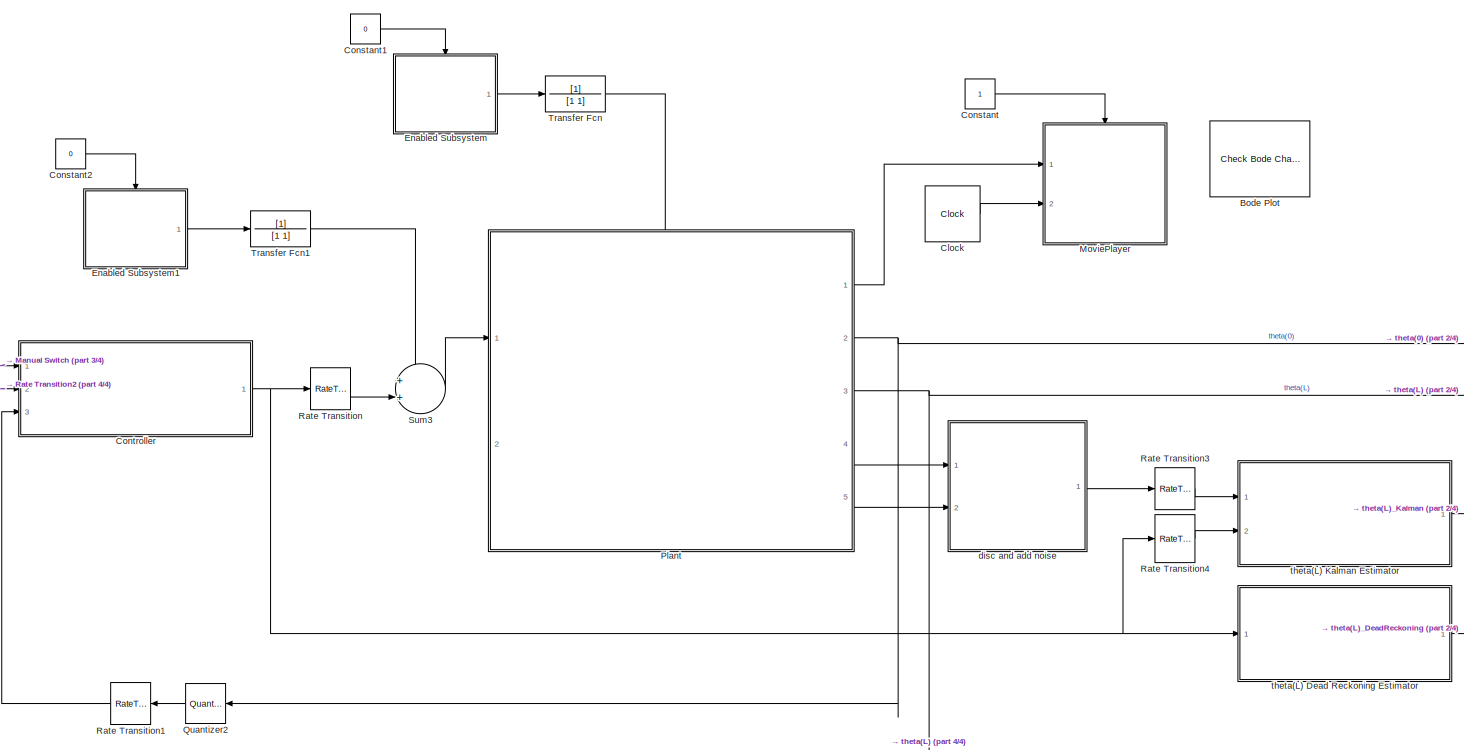
[diagram: root canvas - part 1/4, center side, full height]
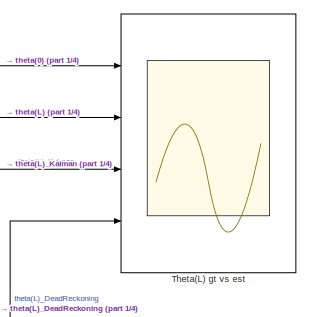
[diagram: root canvas - part 2/4, middle right region]
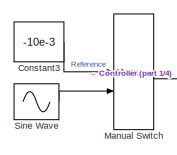
[diagram: root canvas - part 3/4, middle left region]
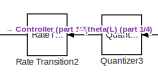
[diagram: root canvas - part 4/4, bottom left region]
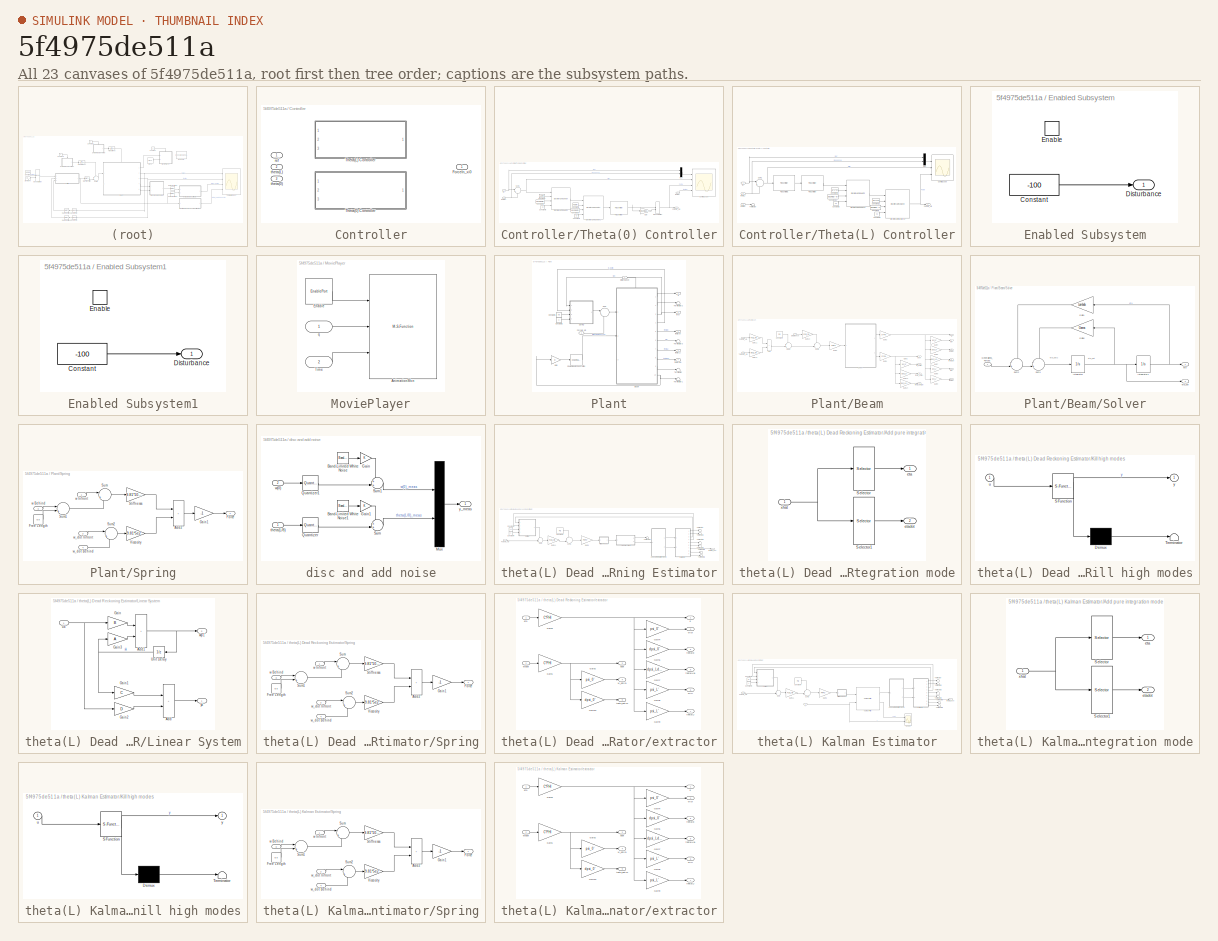
[diagram: thumbnail index - all 23 canvases of the model, root first then tree order]
MODEL slx_5f4975de511a
KIND model
CONFIG AbsTol = auto
CONFIG EnableMultiTasking = off
CONFIG FixedStep = auto
CONFIG MaxStep = auto
CONFIG MinStep = auto
CONFIG RelTol = 1e-3
CONFIG SampleTimeConstraint = Unconstrained
CONFIG SolverName = VariableStepAuto
CONFIG StartTime = 0.0
CONFIG StopTime = 100
WORKSPACE source: mxarray member
WORKSPACE C = [0.75 1 0 0 0 0 -0.125 0 1 0 0 0 ... (30 elements, 6x5)]
WORKSPACE F2Q_xi0 = [1 -1 1 -1 1 -1]
WORKSPACE F2Q_xiL = [1 1 1 1 1 1]
WORKSPACE Fg = [-671.854721711 52.3923406839 223.129733266 -31.4354044104 45.2599380026 -7.4846200977]
WORKSPACE Gama = [1.88495559215e-12 0 0 0 0 0 30.5812966001 0 0 0 0 0 ... (25 elements, 5x5)]
WORKSPACE L = 3
WORKSPACE Lambda = [0 0 0 0 0 0 93521.5701746 0 0 0 0 0 ... (25 elements, 5x5)]
WORKSPACE M2Q_xi0 = [0 0.666666666667 -2.66666666667 6 -10.6666666667 16.6666666667]
WORKSPACE PHI = [0.136866267704 0 0 0 0 0.0925693457997 0.178869515901 0.00465862081508 -0.0123020143683 -0.00075963593161 -0.110163410553 -0.0159810371615 ... (25 elements, 5x5)]
WORKSPACE dpsi_0 = [0 0.666666666667 -2.66666666667 6 -10.6666666667 16.6666666667]
WORKSPACE dpsi_L = [0 0.666666666667 2.66666666667 6 10.6666666667 16.6666666667]
WORKSPACE dpsi_Ldiv8 = [0 0.666666666667 -2 2.5 -1 -2.29166666667]
WORKSPACE eta0 = [0 0 0 0 0 0 0 0 0 0]
WORKSPACE kmr_A = [1 0 0 0 0 0 0 0 0 0 0 0.954071146375 ... (100 elements, 10x10)]
WORKSPACE kmr_B = [5e-07 0 0 0 0 0.001 0 0 0 0 0 4.91104389496e-07 ... (50 elements, 10x5)]
WORKSPACE kmr_C = [-0.034216566926 0.0912441784692 0.103305990835 -0.270336735853 0.243088881823 -0.563746912021 0.447406180495 -0.460343855936 -0.379134249314 -0.0668067502319 0 0 ... (20 elements, 2x10)]
WORKSPACE kmr_D = [0 0 0 0 0 0 0 0 0 0]
WORKSPACE kmr_N = [0 0 0 0 0 0 0 0 0 0 0 0 ... (20 elements, 10x2)]
WORKSPACE kmr_Q = [1 0 0 0 0 0 0 0 0 0 0 1 ... (100 elements, 10x10)]
WORKSPACE kmr_R = [1 0 0 1]
WORKSPACE nc = 1
WORKSPACE nk = 5
WORKSPACE nkill4kalman = 2
WORKSPACE npsi = 6
WORKSPACE psi_0 = [1 -1 1 -1 1 -1]
WORKSPACE psi_L = [1 1 1 1 1 1]
WORKSPACE ts_controller = 0.001
BLOCK [Reference] Bode Plot  REF=slctrlblks/Model Verification/Check Bode 
Characteristics
  InstantiateOnLoad = on
  Ports = []
  SourceBlock = slctrlblks/Model Verification/Check Bode \nCharacteristics
  SourceProductBaseCode = SD
  SourceType = Checks_Bode
BLOCK [Clock] Clock
BLOCK [Constant] Constant
  OpenFcn = if get_param(gcbh,'value')-48\n   set_param(gcbh,'value','0','backgroundcolor','red');\nelse\n   set_param(gcbh,'value','1','backgroundcolor','green');\nend
  SampleTime = 0
BLOCK [Constant] Constant1
  OpenFcn = if get_param(gcbh,'value')-48\n   set_param(gcbh,'value','0','backgroundcolor','red');\nelse\n   set_param(gcbh,'value','1','backgroundcolor','green');\nend
  SampleTime = 0
  Value = 0
BLOCK [Constant] Constant2
  OpenFcn = if get_param(gcbh,'value')-48\n   set_param(gcbh,'value','0','backgroundcolor','red');\nelse\n   set_param(gcbh,'value','1','backgroundcolor','green');\nend
  SampleTime = 0
  Value = 0
BLOCK [Constant] Constant3
  Value = -10e-3
BLOCK [SubSystem] Controller
  LabelModeActiveChoice = Theta(0)
  Ports = [3, 1]
  RequestExecContextInheritance = off
  Variant = on
  VariantControl = Choice
  VariantControlMode = label
BLOCK [Outport] Controller/ForceIn_xi0
BLOCK [SubSystem] Controller/Theta(0) Controller
  Ports = [3, 1]
  RequestExecContextInheritance = off
  TreatAsAtomicUnit = on
  VariantControl = Theta(0)
BLOCK [Constant] Controller/Theta(0) Controller/Constant1
  Value = db2mag(-7)
BLOCK [Constant] Controller/Theta(0) Controller/Constant4
  Value = 0.3
BLOCK [Constant] Controller/Theta(0) Controller/Constant5
  Value = 0.3
BLOCK [Constant] Controller/Theta(0) Controller/Constant6
  Value = db2mag(-6)
BLOCK [Constant] Controller/Theta(0) Controller/Constant7
  Value = 1.6*2*pi
BLOCK [Constant] Controller/Theta(0) Controller/Constant9
  Value = 48*2*pi
BLOCK [Scope] Controller/Theta(0) Controller/Control Scope
  Floating = off
  NumInputPorts = 4
  Ports = [4]
  ScopeSpecificationString = Simulink.scopes.TimeScopeBlockCfg('CurrentConfiguration', extmgr.ConfigurationSet(extmgr.Configuration('Core','General UI',true),extmgr.Configuration('Core','Source UI',true),extmgr.Configuration('Sources','WiredSimulink',true,'DataLoggingVariableName','ScopeData1'),extmgr.Configuration('Visuals','Time Domain',true,'SerializedDisplays',{struct('MinYLimReal','-0.05223','MaxYLimReal','0.03702','YLab...<+3505ch>
BLOCK [Reference] Controller/Theta(0) Controller/Discrete Varying Notch  REF=cstblocks/Linear Parameter Varying/Discrete Varying Notch
  Ports = [4, 1]
  SourceBlock = cstblocks/Linear Parameter Varying/Discrete Varying Notch
  SourceProductBaseCode = CT
  SourceType = Discrete Varying Notch
BLOCK [Reference] Controller/Theta(0) Controller/Discrete Varying Notch1  REF=cstblocks/Linear Parameter Varying/Discrete Varying Notch
  Ports = [4, 1]
  SourceBlock = cstblocks/Linear Parameter Varying/Discrete Varying Notch
  SourceProductBaseCode = CT
  SourceType = Discrete Varying Notch
BLOCK [Outport] Controller/Theta(0) Controller/ForceIn_xi0
BLOCK [Gain] Controller/Theta(0) Controller/Gain
  Gain = db2mag(-10)
BLOCK [ManualSwitch] Controller/Theta(0) Controller/Manual Switch
BLOCK [Mux] Controller/Theta(0) Controller/Mux
  DisplayOption = bar
  Inputs = 2
  Ports = [2, 1]
BLOCK [Reference] Controller/Theta(0) Controller/PID Controller  REF=pid_lib/PID Controller
  Ports = [1, 1]
  SourceBlock = pid_lib/PID Controller
  SourceProductBaseCode = SL
  SourceType = PID 1dof
BLOCK [Sum] Controller/Theta(0) Controller/Sum1
  Inputs = |+-
  Ports = [2, 1]
BLOCK [Inport] Controller/Theta(0) Controller/ref
BLOCK [Inport] Controller/Theta(0) Controller/theta(0)
  Port = 3
BLOCK [Inport] Controller/Theta(0) Controller/theta(L)
  Port = 2
BLOCK [SubSystem] Controller/Theta(L) Controller
  Ports = [3, 1]
  RequestExecContextInheritance = off
  TreatAsAtomicUnit = on
  VariantControl = Theta(L)
BLOCK [Constant] Controller/Theta(L) Controller/Constant1
  Value = db2mag(-7)
BLOCK [Constant] Controller/Theta(L) Controller/Constant10
  Value = db2mag(-6)
BLOCK [Constant] Controller/Theta(L) Controller/Constant11
  Value = 1.6*2*pi
BLOCK [Constant] Controller/Theta(L) Controller/Constant12
  Value = 48*2*pi
BLOCK [Constant] Controller/Theta(L) Controller/Constant2
  Value = 0.3
BLOCK [Constant] Controller/Theta(L) Controller/Constant3
  Value = 0.3
BLOCK [Scope] Controller/Theta(L) Controller/Control Scope
  Floating = off
  NumInputPorts = 3
  Ports = [3]
  ScopeSpecificationString = Simulink.scopes.TimeScopeBlockCfg('CurrentConfiguration', extmgr.ConfigurationSet(extmgr.Configuration('Core','General UI',true),extmgr.Configuration('Core','Source UI',true),extmgr.Configuration('Sources','WiredSimulink',true,'DataLoggingVariableName','ScopeData2'),extmgr.Configuration('Visuals','Time Domain',true,'SerializedDisplays',{struct('MinYLimReal','-0.03792','MaxYLimReal','0.04589','YLab...<+2784ch>
BLOCK [Reference] Controller/Theta(L) Controller/Discrete Varying Notch2  REF=cstblocks/Linear Parameter Varying/Discrete Varying Notch
  Ports = [4, 1]
  SourceBlock = cstblocks/Linear Parameter Varying/Discrete Varying Notch
  SourceProductBaseCode = CT
  SourceType = Discrete Varying Notch
BLOCK [Reference] Controller/Theta(L) Controller/Discrete Varying Notch3  REF=cstblocks/Linear Parameter Varying/Discrete Varying Notch
  Ports = [4, 1]
  SourceBlock = cstblocks/Linear Parameter Varying/Discrete Varying Notch
  SourceProductBaseCode = CT
  SourceType = Discrete Varying Notch
BLOCK [Outport] Controller/Theta(L) Controller/ForceIn_xi0
BLOCK [Mux] Controller/Theta(L) Controller/Mux
  DisplayOption = bar
  Inputs = 2
  Ports = [2, 1]
BLOCK [Reference] Controller/Theta(L) Controller/PID Controller  REF=pid_lib/PID Controller
  Ports = [1, 1]
  SourceBlock = pid_lib/PID Controller
  SourceProductBaseCode = SL
  SourceType = PID 1dof
BLOCK [Reference] Controller/Theta(L) Controller/PID Controller1  REF=pid_lib/PID Controller
  Ports = [1, 1]
  SourceBlock = pid_lib/PID Controller
  SourceProductBaseCode = SL
  SourceType = PID 1dof
BLOCK [Sum] Controller/Theta(L) Controller/Sum1
  Inputs = |+-
  Ports = [2, 1]
BLOCK [Terminator] Controller/Theta(L) Controller/Terminator
BLOCK [Inport] Controller/Theta(L) Controller/ref
BLOCK [Inport] Controller/Theta(L) Controller/theta(0)
  Port = 3
BLOCK [Inport] Controller/Theta(L) Controller/theta(L)
  Port = 2
BLOCK [Inport] Controller/ref
BLOCK [Inport] Controller/theta(0)
  Port = 3
BLOCK [Inport] Controller/theta(L)
  Port = 2
BLOCK [SubSystem] Enabled Subsystem
  Ports = [0, 1, 1]
  RequestExecContextInheritance = off
  TreatAsAtomicUnit = on
BLOCK [Constant] Enabled Subsystem/Constant
  Value = -100
BLOCK [Outport] Enabled Subsystem/Disturbance
  InitialOutput = 0
  OutputWhenDisabled = reset
BLOCK [EnablePort] Enabled Subsystem/Enable
  Ports = []
  StatesWhenEnabling = reset
BLOCK [SubSystem] Enabled Subsystem1
  Ports = [0, 1, 1]
  RequestExecContextInheritance = off
  TreatAsAtomicUnit = on
BLOCK [Constant] Enabled Subsystem1/Constant
  Value = -100
BLOCK [Outport] Enabled Subsystem1/Disturbance
  InitialOutput = 0
  OutputWhenDisabled = reset
BLOCK [EnablePort] Enabled Subsystem1/Enable
  Ports = []
  StatesWhenEnabling = reset
BLOCK [ManualSwitch] Manual Switch
  CurrentSetting = 0
BLOCK [SubSystem] MoviePlayer
  OpenFcn = UserData = get_param([gcb,'/AnimationSfcn'],'UserData');\nFig = UserData.Figure;\nif ishghandle(Fig,'figure');\n   %bring to the front:\n   figure(Fig);\nend
  Ports = [2, 0, 1]
  RequestExecContextInheritance = off
BLOCK [M-S-Function] MoviePlayer/AnimationSfcn
  FunctionName = Sfcn_DrawBeam
  Parameters = L
  Ports = [3]
BLOCK [EnablePort] MoviePlayer/Enable
  Ports = [0, 1]
  ShowOutputPort = on
  StatesWhenEnabling = reset
BLOCK [Inport] MoviePlayer/Time
  Port = 2
BLOCK [Inport] MoviePlayer/q
BLOCK [SubSystem] Plant
  PortSchema = {"entries":[{"content":{"sides":[{"content":{"connectorIds":["In1"]},"type":"ConnectorPlacement.EquallySpacedRectSide","uuid":"36edcb47-3a13-438a-ad6c-79b402161546"},{"content":{"connectorIds":["Out1","Out2","Out3","Out4","Out5"],"side":"RIGHT"},"type":"ConnectorPlacement.EquallySpacedRectSide","uuid":"f206446b-0714-4d39-be89-dc03dcd153f7"},{"content":{"connectorIds":["In2"],"side":"TOP"},"type":"...<+417ch>
  Ports = [2, 5]
  RequestExecContextInheritance = off
  TreatAsAtomicUnit = on
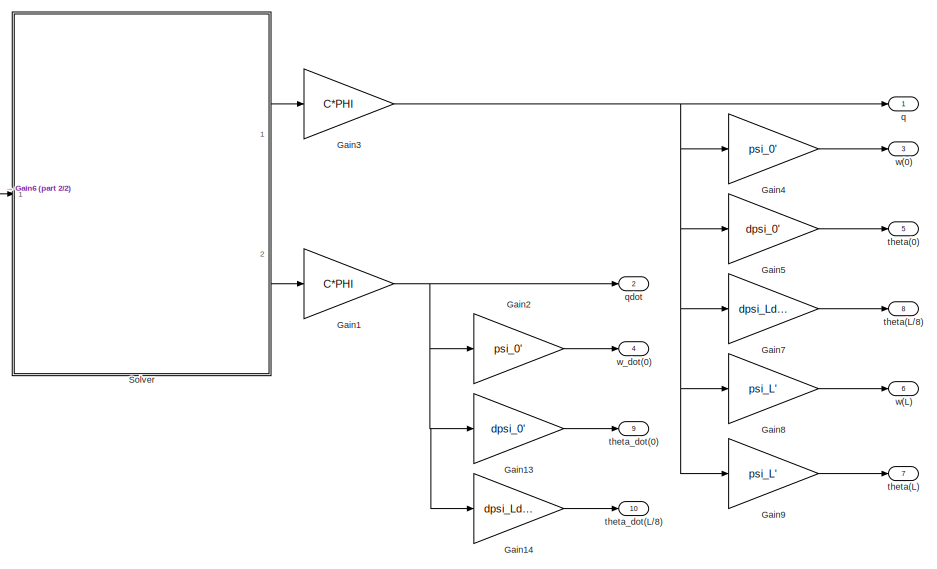
[diagram: Plant/Beam - part 1/2, right side, full height]
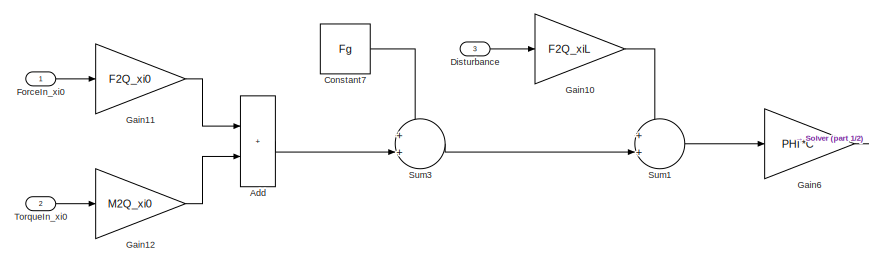
[diagram: Plant/Beam - part 2/2, middle left region]
BLOCK [SubSystem] Plant/Beam
  PortSchema = {"entries":[{"content":{"sides":[{"content":{"connectorIds":["In1","In2"]},"type":"ConnectorPlacement.EquallySpacedRectSide","uuid":"abe6467a-2196-4326-b3df-78fc9ab57750"},{"content":{"connectorIds":["Out1","Out2","Out3","Out4","Out5","Out6","Out7","Out8","Out9","Out10"],"side":"RIGHT"},"type":"ConnectorPlacement.EquallySpacedRectSide","uuid":"8f33c77a-829a-46db-9e71-a7c761c5b10e"},{"content":{"co...<+459ch>
  Ports = [3, 10]
  RequestExecContextInheritance = off
BLOCK [Sum] Plant/Beam/Add
  IconShape = rectangular
  Ports = [2, 1]
BLOCK [Constant] Plant/Beam/Constant7
  Value = Fg
BLOCK [Inport] Plant/Beam/Disturbance
  Port = 3
BLOCK [Inport] Plant/Beam/ForceIn_xi0
BLOCK [Gain] Plant/Beam/Gain1
  Gain = C*PHI
  Multiplication = Matrix(K*u) (u vector)
BLOCK [Gain] Plant/Beam/Gain10
  Gain = F2Q_xiL
  Multiplication = Matrix(K*u) (u vector)
BLOCK [Gain] Plant/Beam/Gain11
  Gain = F2Q_xi0
  Multiplication = Matrix(K*u) (u vector)
BLOCK [Gain] Plant/Beam/Gain12
  Gain = M2Q_xi0
  Multiplication = Matrix(K*u) (u vector)
BLOCK [Gain] Plant/Beam/Gain13
  Gain = dpsi_0'
  Multiplication = Matrix(K*u) (u vector)
BLOCK [Gain] Plant/Beam/Gain14
  Gain = dpsi_Ldiv8'
  Multiplication = Matrix(K*u) (u vector)
BLOCK [Gain] Plant/Beam/Gain2
  Gain = psi_0'
  Multiplication = Matrix(K*u) (u vector)
BLOCK [Gain] Plant/Beam/Gain3
  Gain = C*PHI
  Multiplication = Matrix(K*u) (u vector)
BLOCK [Gain] Plant/Beam/Gain4
  Gain = psi_0'
  Multiplication = Matrix(K*u) (u vector)
BLOCK [Gain] Plant/Beam/Gain5
  Gain = dpsi_0'
  Multiplication = Matrix(K*u) (u vector)
BLOCK [Gain] Plant/Beam/Gain6
  Gain = PHI'*C'
  Multiplication = Matrix(K*u) (u vector)
BLOCK [Gain] Plant/Beam/Gain7
  Gain = dpsi_Ldiv8'
  Multiplication = Matrix(K*u) (u vector)
BLOCK [Gain] Plant/Beam/Gain8
  Gain = psi_L'
  Multiplication = Matrix(K*u) (u vector)
BLOCK [Gain] Plant/Beam/Gain9
  Gain = psi_L'
  Multiplication = Matrix(K*u) (u vector)
BLOCK [SubSystem] Plant/Beam/Solver
  Ports = [1, 2]
  RequestExecContextInheritance = off
  TreatAsAtomicUnit = on
BLOCK [Gain] Plant/Beam/Solver/Gain1
  Gain = Lambda
  Multiplication = Matrix(K*u) (u vector)
  NameLocation = top
BLOCK [Gain] Plant/Beam/Solver/Gain6
  Gain = Gama
  Multiplication = Matrix(K*u) (u vector)
  NameLocation = top
BLOCK [Inport] Plant/Beam/Solver/Generalized_Forces
BLOCK [Integrator] Plant/Beam/Solver/Integrator
  Ports = [1, 1]
BLOCK [Integrator] Plant/Beam/Solver/Integrator1
  Ports = [1, 1]
BLOCK [Sum] Plant/Beam/Solver/Sum1
  Inputs = -+|
  NameLocation = top
  Ports = [2, 1]
BLOCK [Sum] Plant/Beam/Solver/Sum2
  Inputs = -+|
  NameLocation = top
  Ports = [2, 1]
BLOCK [Outport] Plant/Beam/Solver/eta
BLOCK [Outport] Plant/Beam/Solver/eta_dot
  Port = 2
BLOCK [Sum] Plant/Beam/Sum1
  Inputs = ++|
  NameLocation = top
  Ports = [2, 1]
BLOCK [Sum] Plant/Beam/Sum3
  Inputs = ++|
  NameLocation = top
  Ports = [2, 1]
BLOCK [Inport] Plant/Beam/TorqueIn_xi0
  Port = 2
BLOCK [Outport] Plant/Beam/q
BLOCK [Outport] Plant/Beam/qdot
  Port = 2
BLOCK [Outport] Plant/Beam/theta(0)
  Port = 5
BLOCK [Outport] Plant/Beam/theta(L)
  Port = 7
BLOCK [Outport] Plant/Beam/theta(L//8)
  Port = 8
BLOCK [Outport] Plant/Beam/theta_dot(0)
  Port = 9
BLOCK [Outport] Plant/Beam/theta_dot(L//8)
  Port = 10
BLOCK [Outport] Plant/Beam/w(0)
  Port = 3
BLOCK [Outport] Plant/Beam/w(L)
  Port = 6
BLOCK [Outport] Plant/Beam/w_dot(0)
  Port = 4
BLOCK [Constant] Plant/Constant1
  Value = 0.5
BLOCK [Constant] Plant/Constant2
  Value = 0
BLOCK [Reference] Plant/Coulomb & Viscous Friction  REF=simulink/Discontinuities/Coulomb &
Viscous Friction
  Ports = [1, 1]
  SourceBlock = simulink/Discontinuities/Coulomb &\nViscous Friction
  SourceProductBaseCode = SL
  SourceType = Coulombic and Viscous Friction
BLOCK [Inport] Plant/Disturbance
  Port = 2
BLOCK [Inport] Plant/ForceIn_xi0
BLOCK [Gain] Plant/Gain
  Gain = 0
BLOCK [SubSystem] Plant/Spring
  Ports = [4, 1]
  RequestExecContextInheritance = off
BLOCK [Sum] Plant/Spring/Add2
  IconShape = rectangular
  Ports = [2, 1]
BLOCK [Outport] Plant/Spring/Force
BLOCK [Constant] Plant/Spring/Free Length
  Value = 0.5
BLOCK [Gain] Plant/Spring/Gain1
  Gain = -1
BLOCK [Gain] Plant/Spring/Stiffnesss
  Gain = 9.81*10e3
BLOCK [Sum] Plant/Spring/Sum
  Inputs = |+-
  Ports = [2, 1]
BLOCK [Sum] Plant/Spring/Sum1
  Inputs = |+-
  Ports = [2, 1]
BLOCK [Sum] Plant/Spring/Sum2
  Inputs = |+-
  Ports = [2, 1]
BLOCK [Gain] Plant/Spring/Viscosity
  Gain = 9.81*5e2
BLOCK [Inport] Plant/Spring/w Behind
  NameLocation = left
  Port = 3
BLOCK [Inport] Plant/Spring/w Infront
BLOCK [Inport] Plant/Spring/w_dot Behind
  Port = 4
BLOCK [Inport] Plant/Spring/w_dot Infront
  Port = 2
BLOCK [Sum] Plant/Sum
  Inputs = |++
  Ports = [2, 1]
BLOCK [Terminator] Plant/Terminator
BLOCK [Terminator] Plant/Terminator1
BLOCK [Terminator] Plant/Terminator2
BLOCK [Terminator] Plant/Terminator3
  NameLocation = left
BLOCK [Outport] Plant/q
BLOCK [Outport] Plant/theta(0)
  Port = 2
BLOCK [Outport] Plant/theta(L)
  Port = 3
BLOCK [Outport] Plant/theta(L//8)
  Port = 4
BLOCK [Outport] Plant/w(0)
  Port = 5
BLOCK [Quantizer] Quantizer2
  NameLocation = top
  QuantizationInterval = 2*pi/(2^25)
BLOCK [Quantizer] Quantizer3
  NameLocation = top
  QuantizationInterval = 2*pi/(2^25)
BLOCK [RateTransition] Rate Transition
BLOCK [RateTransition] Rate Transition1
  NameLocation = top
  OutPortSampleTime = ts_controller
BLOCK [RateTransition] Rate Transition2
  NameLocation = top
  OutPortSampleTime = ts_controller
BLOCK [RateTransition] Rate Transition3
  OutPortSampleTime = ts_controller
BLOCK [RateTransition] Rate Transition4
  OutPortSampleTime = ts_controller
BLOCK [Sin] Sine Wave
  Amplitude = 10e-3
  Bias = 5e-3
  Frequency = 2*pi*2
  Ports = [0, 1]
  SampleTime = ts_controller
BLOCK [Sum] Sum3
  Inputs = ++|
  NameLocation = top
  Ports = [2, 1]
BLOCK [Scope] Theta(L) gt vs est
  Floating = off
  NumInputPorts = 4
  Ports = [4]
  ScopeSpecificationString = Simulink.scopes.TimeScopeBlockCfg('CurrentConfiguration', extmgr.ConfigurationSet(extmgr.Configuration('Core','General UI',true),extmgr.Configuration('Core','Source UI',true),extmgr.Configuration('Sources','WiredSimulink',true,'DataLoggingVariableName','ScopeData1'),extmgr.Configuration('Visuals','Time Domain',true,'SerializedDisplays',{struct('MinYLimReal','-0.18981','MaxYLimReal','0.08964','YLab...<+1590ch>
BLOCK [TransferFcn] Transfer Fcn
  Denominator = [1 1]
BLOCK [TransferFcn] Transfer Fcn1
  Denominator = [1 1]
BLOCK [SubSystem] disc and add noise
  Ports = [2, 1]
  RequestExecContextInheritance = off
BLOCK [Reference] disc and add noise/Band-Limited White Noise  REF=simulink/Sources/Band-Limited
White Noise
  Ports = [0, 1]
  SourceBlock = simulink/Sources/Band-Limited\nWhite Noise
  SourceProductBaseCode = SL
  SourceType = Band-Limited White Noise.
BLOCK [Reference] disc and add noise/Band-Limited White Noise1  REF=simulink/Sources/Band-Limited
White Noise
  Ports = [0, 1]
  SourceBlock = simulink/Sources/Band-Limited\nWhite Noise
  SourceProductBaseCode = SL
  SourceType = Band-Limited White Noise.
BLOCK [Gain] disc and add noise/Gain
BLOCK [Gain] disc and add noise/Gain1
BLOCK [Mux] disc and add noise/Mux
  DisplayOption = bar
  Inputs = 2
  Ports = [2, 1]
BLOCK [Quantizer] disc and add noise/Quantizer
  QuantizationInterval = 2*pi/(2^25)
BLOCK [Quantizer] disc and add noise/Quantizer1
  QuantizationInterval = 1/(2^25)
BLOCK [Sum] disc and add noise/Sum
  Inputs = ++|
  Ports = [2, 1]
BLOCK [Sum] disc and add noise/Sum1
  Inputs = ++|
  Ports = [2, 1]
BLOCK [Inport] disc and add noise/theta(L//8)
BLOCK [Inport] disc and add noise/w(0)
  Port = 2
BLOCK [Outport] disc and add noise/y_meas
BLOCK [SubSystem] theta(L) Dead Reckoning Estimator
  Ports = [1, 1]
  RequestExecContextInheritance = off
  TreatAsAtomicUnit = on
BLOCK [SubSystem] theta(L) Dead Reckoning Estimator/Add pure integration mode
  Ports = [1, 2]
  RequestExecContextInheritance = off
BLOCK [Selector] theta(L) Dead Reckoning Estimator/Add pure integration mode/Selector
  IndexOptions = Index vector (dialog)
  Indices = [1:nk]
  InputPortWidth = 2*nk
  OutputSizes = 1
  Ports = [1, 1]
BLOCK [Selector] theta(L) Dead Reckoning Estimator/Add pure integration mode/Selector1
  IndexOptions = Index vector (dialog)
  Indices = [nk+1:2*nk]
  InputPortWidth = 2*nk
  OutputSizes = 1
  Ports = [1, 1]
BLOCK [Outport] theta(L) Dead Reckoning Estimator/Add pure integration mode/eta
BLOCK [Outport] theta(L) Dead Reckoning Estimator/Add pure integration mode/etadot
  Port = 2
BLOCK [Inport] theta(L) Dead Reckoning Estimator/Add pure integration mode/xhat
BLOCK [Constant] theta(L) Dead Reckoning Estimator/Constant2
  Value = 0.5
BLOCK [Constant] theta(L) Dead Reckoning Estimator/Constant4
  Value = 0
BLOCK [Constant] theta(L) Dead Reckoning Estimator/Constant7
  Value = Fg
BLOCK [Inport] theta(L) Dead Reckoning Estimator/ForceIn_xi0
BLOCK [Gain] theta(L) Dead Reckoning Estimator/Gain11
  Gain = F2Q_xi0
  Multiplication = Matrix(K*u) (u vector)
BLOCK [Gain] theta(L) Dead Reckoning Estimator/Gain6
  Gain = PHI'*C'
  Multiplication = Matrix(K*u) (u vector)
BLOCK [SubSystem] theta(L) Dead Reckoning Estimator/Kill high modes
  ErrorFcn = Stateflow.Translate.translate
  PermitHierarchicalResolution = ExplicitOnly
  Ports = [1, 1]
  RequestExecContextInheritance = off
  SFBlockType = MATLAB Function
  TreatAsAtomicUnit = on
BLOCK [Demux] theta(L) Dead Reckoning Estimator/Kill high modes/ Demux 
  Outputs = 1
  Ports = [1, 1]
BLOCK [S-Function] theta(L) Dead Reckoning Estimator/Kill high modes/ SFunction 
  EnableBusSupport = on
  FunctionName = sf_sfun
  Parameters = nkill4kalman
  PortCounts = [1 2]
  Ports = [1, 2]
  SFcnIsStateOwnerBlock = off
  SFunctionDeploymentMode = off
  Tag = Stateflow S-Function 1
BLOCK [Terminator] theta(L) Dead Reckoning Estimator/Kill high modes/ Terminator 
BLOCK [Inport] theta(L) Dead Reckoning Estimator/Kill high modes/u
BLOCK [Outport] theta(L) Dead Reckoning Estimator/Kill high modes/y
BLOCK [SubSystem] theta(L) Dead Reckoning Estimator/Linear System
  Ports = [1, 2]
  RequestExecContextInheritance = off
BLOCK [Sum] theta(L) Dead Reckoning Estimator/Linear System/Add
  IconShape = rectangular
  Ports = [2, 1]
BLOCK [Sum] theta(L) Dead Reckoning Estimator/Linear System/Add1
  IconShape = rectangular
  Ports = [2, 1]
BLOCK [Gain] theta(L) Dead Reckoning Estimator/Linear System/Gain
  Gain = B
  Multiplication = Matrix(K*u) (u vector)
BLOCK [Gain] theta(L) Dead Reckoning Estimator/Linear System/Gain1
  Gain = C
  Multiplication = Matrix(K*u) (u vector)
BLOCK [Gain] theta(L) Dead Reckoning Estimator/Linear System/Gain2
  Gain = D
  Multiplication = Matrix(K*u) (u vector)
BLOCK [Gain] theta(L) Dead Reckoning Estimator/Linear System/Gain3
  Gain = A
  Multiplication = Matrix(K*u) (u vector)
BLOCK [UnitDelay] theta(L) Dead Reckoning Estimator/Linear System/Unit Delay
  HasFrameUpgradeWarning = on
  NameLocation = top
  SampleTime = -1
BLOCK [Inport] theta(L) Dead Reckoning Estimator/Linear System/uk
BLOCK [Outport] theta(L) Dead Reckoning Estimator/Linear System/xkp1
  Port = 2
BLOCK [Outport] theta(L) Dead Reckoning Estimator/Linear System/yk
BLOCK [SubSystem] theta(L) Dead Reckoning Estimator/Spring
  Ports = [4, 1]
  RequestExecContextInheritance = off
BLOCK [Sum] theta(L) Dead Reckoning Estimator/Spring/Add2
  IconShape = rectangular
  Ports = [2, 1]
BLOCK [Outport] theta(L) Dead Reckoning Estimator/Spring/Force
BLOCK [Constant] theta(L) Dead Reckoning Estimator/Spring/Free Length
  Value = 0.5
BLOCK [Gain] theta(L) Dead Reckoning Estimator/Spring/Gain1
  Gain = -1
BLOCK [Gain] theta(L) Dead Reckoning Estimator/Spring/Stiffnesss
  Gain = 9.81*10e3
BLOCK [Sum] theta(L) Dead Reckoning Estimator/Spring/Sum
  Inputs = |+-
  Ports = [2, 1]
BLOCK [Sum] theta(L) Dead Reckoning Estimator/Spring/Sum1
  Inputs = |+-
  Ports = [2, 1]
BLOCK [Sum] theta(L) Dead Reckoning Estimator/Spring/Sum2
  Inputs = |+-
  Ports = [2, 1]
BLOCK [Gain] theta(L) Dead Reckoning Estimator/Spring/Viscosity
  Gain = 9.81*5e2
BLOCK [Inport] theta(L) Dead Reckoning Estimator/Spring/w Behind
  NameLocation = left
  Port = 3
BLOCK [Inport] theta(L) Dead Reckoning Estimator/Spring/w Infront
BLOCK [Inport] theta(L) Dead Reckoning Estimator/Spring/w_dot Behind
  Port = 4
BLOCK [Inport] theta(L) Dead Reckoning Estimator/Spring/w_dot Infront
  Port = 2
BLOCK [Sum] theta(L) Dead Reckoning Estimator/Sum
  Inputs = ++|
  Ports = [2, 1]
BLOCK [Sum] theta(L) Dead Reckoning Estimator/Sum3
  Inputs = ++|
  NameLocation = top
  Ports = [2, 1]
BLOCK [Terminator] theta(L) Dead Reckoning Estimator/Terminator
BLOCK [Terminator] theta(L) Dead Reckoning Estimator/Terminator1
BLOCK [Terminator] theta(L) Dead Reckoning Estimator/Terminator2
BLOCK [Terminator] theta(L) Dead Reckoning Estimator/Terminator3
BLOCK [Terminator] theta(L) Dead Reckoning Estimator/Terminator4
BLOCK [Terminator] theta(L) Dead Reckoning Estimator/Terminator5
BLOCK [Terminator] theta(L) Dead Reckoning Estimator/Terminator6
BLOCK [SubSystem] theta(L) Dead Reckoning Estimator/extractor
  Ports = [2, 9]
  RequestExecContextInheritance = off
BLOCK [Gain] theta(L) Dead Reckoning Estimator/extractor/Gain1
  Gain = C*PHI
  Multiplication = Matrix(K*u) (u vector)
BLOCK [Gain] theta(L) Dead Reckoning Estimator/extractor/Gain13
  Gain = dpsi_0'
  Multiplication = Matrix(K*u) (u vector)
BLOCK [Gain] theta(L) Dead Reckoning Estimator/extractor/Gain2
  Gain = psi_0'
  Multiplication = Matrix(K*u) (u vector)
BLOCK [Gain] theta(L) Dead Reckoning Estimator/extractor/Gain3
  Gain = C*PHI
  Multiplication = Matrix(K*u) (u vector)
BLOCK [Gain] theta(L) Dead Reckoning Estimator/extractor/Gain4
  Gain = psi_0'
  Multiplication = Matrix(K*u) (u vector)
BLOCK [Gain] theta(L) Dead Reckoning Estimator/extractor/Gain5
  Gain = dpsi_0'
  Multiplication = Matrix(K*u) (u vector)
BLOCK [Gain] theta(L) Dead Reckoning Estimator/extractor/Gain7
  Gain = dpsi_Ldiv8'
  Multiplication = Matrix(K*u) (u vector)
BLOCK [Gain] theta(L) Dead Reckoning Estimator/extractor/Gain8
  Gain = psi_L'
  Multiplication = Matrix(K*u) (u vector)
BLOCK [Gain] theta(L) Dead Reckoning Estimator/extractor/Gain9
  Gain = psi_L'
  Multiplication = Matrix(K*u) (u vector)
BLOCK [Inport] theta(L) Dead Reckoning Estimator/extractor/eta
BLOCK [Inport] theta(L) Dead Reckoning Estimator/extractor/etadot
  Port = 2
BLOCK [Outport] theta(L) Dead Reckoning Estimator/extractor/q
BLOCK [Outport] theta(L) Dead Reckoning Estimator/extractor/qdot
  Port = 2
BLOCK [Outport] theta(L) Dead Reckoning Estimator/extractor/theta(0)
  Port = 5
BLOCK [Outport] theta(L) Dead Reckoning Estimator/extractor/theta(L)
  Port = 7
BLOCK [Outport] theta(L) Dead Reckoning Estimator/extractor/theta(L//8)
  Port = 8
BLOCK [Outport] theta(L) Dead Reckoning Estimator/extractor/theta_dot(0)
  Port = 9
BLOCK [Outport] theta(L) Dead Reckoning Estimator/extractor/w(0)
  Port = 3
BLOCK [Outport] theta(L) Dead Reckoning Estimator/extractor/w(L)
  Port = 6
BLOCK [Outport] theta(L) Dead Reckoning Estimator/extractor/w_dot(0)
  Port = 4
BLOCK [Outport] theta(L) Dead Reckoning Estimator/theta(L)_est
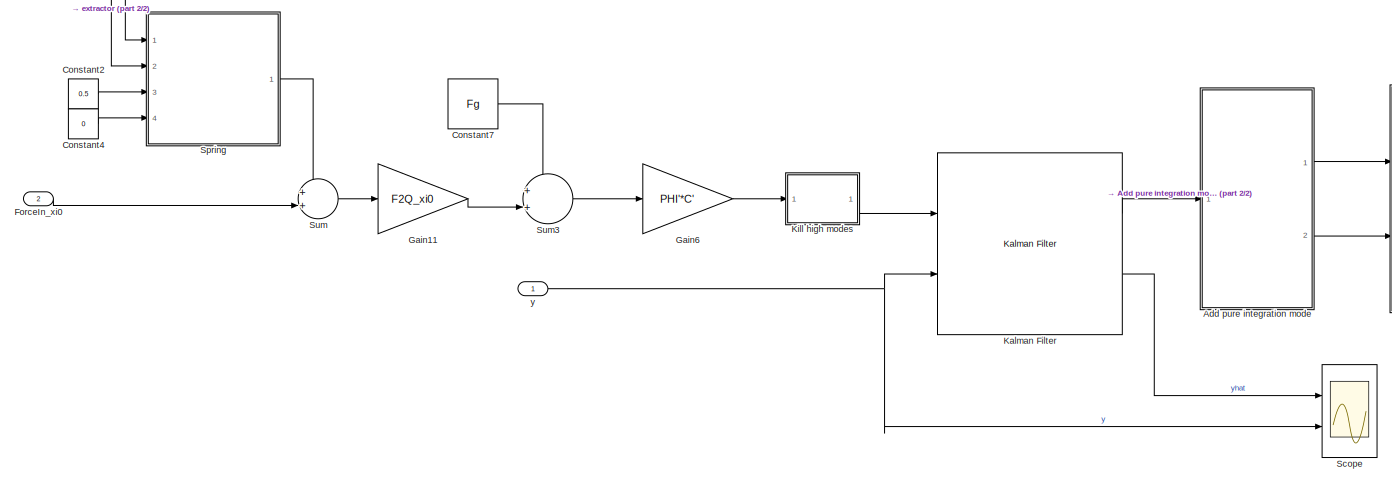
[diagram: theta(L) Kalman Estimator - part 1/2, most of the canvas]
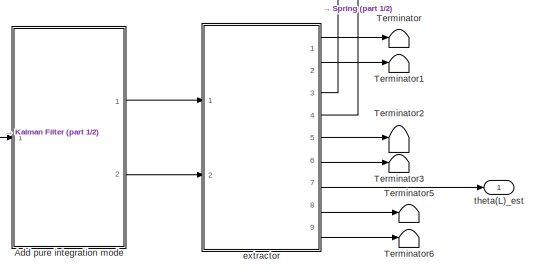
[diagram: theta(L) Kalman Estimator - part 2/2, middle right region]
BLOCK [SubSystem] theta(L) Kalman Estimator
  Ports = [2, 1]
  RequestExecContextInheritance = off
  TreatAsAtomicUnit = on
BLOCK [SubSystem] theta(L) Kalman Estimator/Add pure integration mode
  Ports = [1, 2]
  RequestExecContextInheritance = off
BLOCK [Selector] theta(L) Kalman Estimator/Add pure integration mode/Selector
  IndexOptions = Index vector (dialog)
  Indices = [1:nk]
  InputPortWidth = 2*nk
  OutputSizes = 1
  Ports = [1, 1]
BLOCK [Selector] theta(L) Kalman Estimator/Add pure integration mode/Selector1
  IndexOptions = Index vector (dialog)
  Indices = [nk+1:2*nk]
  InputPortWidth = 2*nk
  OutputSizes = 1
  Ports = [1, 1]
BLOCK [Outport] theta(L) Kalman Estimator/Add pure integration mode/eta
BLOCK [Outport] theta(L) Kalman Estimator/Add pure integration mode/etadot
  Port = 2
BLOCK [Inport] theta(L) Kalman Estimator/Add pure integration mode/xhat
BLOCK [Constant] theta(L) Kalman Estimator/Constant2
  Value = 0.5
BLOCK [Constant] theta(L) Kalman Estimator/Constant4
  Value = 0
BLOCK [Constant] theta(L) Kalman Estimator/Constant7
  Value = Fg
BLOCK [Inport] theta(L) Kalman Estimator/ForceIn_xi0
  Port = 2
BLOCK [Gain] theta(L) Kalman Estimator/Gain11
  Gain = F2Q_xi0
  Multiplication = Matrix(K*u) (u vector)
BLOCK [Gain] theta(L) Kalman Estimator/Gain6
  Gain = PHI'*C'
  Multiplication = Matrix(K*u) (u vector)
BLOCK [Reference] theta(L) Kalman Estimator/Kalman Filter  REF=ctrlSharedLib/Kalman Filter
  Ports = [2, 2]
  SourceBlock = ctrlSharedLib/Kalman Filter
  SourceProductBaseCode = CT,ID
  SourceType = ctrlKalmanFilter
BLOCK [SubSystem] theta(L) Kalman Estimator/Kill high modes
  ErrorFcn = Stateflow.Translate.translate
  PermitHierarchicalResolution = ExplicitOnly
  Ports = [1, 1]
  RequestExecContextInheritance = off
  SFBlockType = MATLAB Function
  TreatAsAtomicUnit = on
BLOCK [Demux] theta(L) Kalman Estimator/Kill high modes/ Demux 
  Outputs = 1
  Ports = [1, 1]
BLOCK [S-Function] theta(L) Kalman Estimator/Kill high modes/ SFunction 
  EnableBusSupport = on
  FunctionName = sf_sfun
  Parameters = nkill4kalman
  PortCounts = [1 2]
  Ports = [1, 2]
  SFcnIsStateOwnerBlock = off
  SFunctionDeploymentMode = off
  Tag = Stateflow S-Function 2
BLOCK [Terminator] theta(L) Kalman Estimator/Kill high modes/ Terminator 
BLOCK [Inport] theta(L) Kalman Estimator/Kill high modes/u
BLOCK [Outport] theta(L) Kalman Estimator/Kill high modes/y
BLOCK [Scope] theta(L) Kalman Estimator/Scope
  Floating = off
  NumInputPorts = 2
  Ports = [2]
  ScopeSpecificationString = Simulink.scopes.TimeScopeBlockCfg('CurrentConfiguration', extmgr.ConfigurationSet(extmgr.Configuration('Core','General UI',true),extmgr.Configuration('Core','Source UI',true),extmgr.Configuration('Sources','WiredSimulink',true,'DataLoggingVariableName','ScopeData1'),extmgr.Configuration('Visuals','Time Domain',true,'SerializedDisplays',{struct('MinYLimReal','-0.01347','MaxYLimReal','0.02072','YLab...<+1551ch>
BLOCK [SubSystem] theta(L) Kalman Estimator/Spring
  Ports = [4, 1]
  RequestExecContextInheritance = off
BLOCK [Sum] theta(L) Kalman Estimator/Spring/Add2
  IconShape = rectangular
  Ports = [2, 1]
BLOCK [Outport] theta(L) Kalman Estimator/Spring/Force
BLOCK [Constant] theta(L) Kalman Estimator/Spring/Free Length
  Value = 0.5
BLOCK [Gain] theta(L) Kalman Estimator/Spring/Gain1
  Gain = -1
BLOCK [Gain] theta(L) Kalman Estimator/Spring/Stiffnesss
  Gain = 9.81*10e3
BLOCK [Sum] theta(L) Kalman Estimator/Spring/Sum
  Inputs = |+-
  Ports = [2, 1]
BLOCK [Sum] theta(L) Kalman Estimator/Spring/Sum1
  Inputs = |+-
  Ports = [2, 1]
BLOCK [Sum] theta(L) Kalman Estimator/Spring/Sum2
  Inputs = |+-
  Ports = [2, 1]
BLOCK [Gain] theta(L) Kalman Estimator/Spring/Viscosity
  Gain = 9.81*5e2
BLOCK [Inport] theta(L) Kalman Estimator/Spring/w Behind
  NameLocation = left
  Port = 3
BLOCK [Inport] theta(L) Kalman Estimator/Spring/w Infront
BLOCK [Inport] theta(L) Kalman Estimator/Spring/w_dot Behind
  Port = 4
BLOCK [Inport] theta(L) Kalman Estimator/Spring/w_dot Infront
  Port = 2
BLOCK [Sum] theta(L) Kalman Estimator/Sum
  Inputs = ++|
  Ports = [2, 1]
BLOCK [Sum] theta(L) Kalman Estimator/Sum3
  Inputs = ++|
  NameLocation = top
  Ports = [2, 1]
BLOCK [Terminator] theta(L) Kalman Estimator/Terminator
BLOCK [Terminator] theta(L) Kalman Estimator/Terminator1
BLOCK [Terminator] theta(L) Kalman Estimator/Terminator2
BLOCK [Terminator] theta(L) Kalman Estimator/Terminator3
BLOCK [Terminator] theta(L) Kalman Estimator/Terminator5
BLOCK [Terminator] theta(L) Kalman Estimator/Terminator6
BLOCK [SubSystem] theta(L) Kalman Estimator/extractor
  Ports = [2, 9]
  RequestExecContextInheritance = off
BLOCK [Gain] theta(L) Kalman Estimator/extractor/Gain1
  Gain = C*PHI
  Multiplication = Matrix(K*u) (u vector)
BLOCK [Gain] theta(L) Kalman Estimator/extractor/Gain13
  Gain = dpsi_0'
  Multiplication = Matrix(K*u) (u vector)
BLOCK [Gain] theta(L) Kalman Estimator/extractor/Gain2
  Gain = psi_0'
  Multiplication = Matrix(K*u) (u vector)
BLOCK [Gain] theta(L) Kalman Estimator/extractor/Gain3
  Gain = C*PHI
  Multiplication = Matrix(K*u) (u vector)
BLOCK [Gain] theta(L) Kalman Estimator/extractor/Gain4
  Gain = psi_0'
  Multiplication = Matrix(K*u) (u vector)
BLOCK [Gain] theta(L) Kalman Estimator/extractor/Gain5
  Gain = dpsi_0'
  Multiplication = Matrix(K*u) (u vector)
BLOCK [Gain] theta(L) Kalman Estimator/extractor/Gain7
  Gain = dpsi_Ldiv8'
  Multiplication = Matrix(K*u) (u vector)
BLOCK [Gain] theta(L) Kalman Estimator/extractor/Gain8
  Gain = psi_L'
  Multiplication = Matrix(K*u) (u vector)
BLOCK [Gain] theta(L) Kalman Estimator/extractor/Gain9
  Gain = psi_L'
  Multiplication = Matrix(K*u) (u vector)
BLOCK [Inport] theta(L) Kalman Estimator/extractor/eta
BLOCK [Inport] theta(L) Kalman Estimator/extractor/etadot
  Port = 2
BLOCK [Outport] theta(L) Kalman Estimator/extractor/q
BLOCK [Outport] theta(L) Kalman Estimator/extractor/qdot
  Port = 2
BLOCK [Outport] theta(L) Kalman Estimator/extractor/theta(0)
  Port = 5
BLOCK [Outport] theta(L) Kalman Estimator/extractor/theta(L)
  Port = 7
BLOCK [Outport] theta(L) Kalman Estimator/extractor/theta(L//8)
  Port = 8
BLOCK [Outport] theta(L) Kalman Estimator/extractor/theta_dot(0)
  Port = 9
BLOCK [Outport] theta(L) Kalman Estimator/extractor/w(0)
  Port = 3
BLOCK [Outport] theta(L) Kalman Estimator/extractor/w(L)
  Port = 6
BLOCK [Outport] theta(L) Kalman Estimator/extractor/w_dot(0)
  Port = 4
BLOCK [Outport] theta(L) Kalman Estimator/theta(L)_est
BLOCK [Inport] theta(L) Kalman Estimator/y
ANNOTATION Plant/Beam/Solver: eta_dot
ANNOTATION Plant/Beam/Solver: eta_dot2
LINE Clock:1 -> MoviePlayer:2
LINE Constant1:1 -> Enabled Subsystem:enable
LINE Constant2:1 -> Enabled Subsystem1:enable
LINE Constant3:1 -> Manual Switch:1
LINE Constant:1 -> MoviePlayer:enable
LINE Controller/Theta(0) Controller/Constant1:1 -> Controller/Theta(0) Controller/Discrete Varying Notch1:3
LINE Controller/Theta(0) Controller/Constant4:1 -> Controller/Theta(0) Controller/Discrete Varying Notch1:4
LINE Controller/Theta(0) Controller/Constant5:1 -> Controller/Theta(0) Controller/Discrete Varying Notch:4
LINE Controller/Theta(0) Controller/Constant6:1 -> Controller/Theta(0) Controller/Discrete Varying Notch:3
LINE Controller/Theta(0) Controller/Constant7:1 -> Controller/Theta(0) Controller/Discrete Varying Notch:2
LINE Controller/Theta(0) Controller/Constant9:1 -> Controller/Theta(0) Controller/Discrete Varying Notch1:2
LINE Controller/Theta(0) Controller/Discrete Varying Notch1:1 -> Controller/Theta(0) Controller/PID Controller:1
LINE Controller/Theta(0) Controller/Discrete Varying Notch:1 -> Controller/Theta(0) Controller/Discrete Varying Notch1:1
LINE Controller/Theta(0) Controller/Gain:1 -> Controller/Theta(0) Controller/Manual Switch:2
NET Controller/Theta(0) Controller/Manual Switch:1 -> Controller/Theta(0) Controller/Control Scope:3, Controller/Theta(0) Controller/ForceIn_xi0:1
LINE Controller/Theta(0) Controller/Mux:1 -> Controller/Theta(0) Controller/Control Scope:1
NET Controller/Theta(0) Controller/PID Controller:1 -> Controller/Theta(0) Controller/Gain:1, Controller/Theta(0) Controller/Manual Switch:1
NET Controller/Theta(0) Controller/Sum1:1 -> Controller/Theta(0) Controller/Control Scope:2, Controller/Theta(0) Controller/Discrete Varying Notch:1
NET Controller/Theta(0) Controller/ref:1 -> Controller/Theta(0) Controller/Mux:1, Controller/Theta(0) Controller/Sum1:1
NET Controller/Theta(0) Controller/theta(0):1 -> Controller/Theta(0) Controller/Mux:2, Controller/Theta(0) Controller/Sum1:2
LINE Controller/Theta(0) Controller/theta(L):1 -> Controller/Theta(0) Controller/Control Scope:4
LINE Controller/Theta(L) Controller/Constant10:1 -> Controller/Theta(L) Controller/Discrete Varying Notch2:3
LINE Controller/Theta(L) Controller/Constant11:1 -> Controller/Theta(L) Controller/Discrete Varying Notch2:2
LINE Controller/Theta(L) Controller/Constant12:1 -> Controller/Theta(L) Controller/Discrete Varying Notch3:2
LINE Controller/Theta(L) Controller/Constant1:1 -> Controller/Theta(L) Controller/Discrete Varying Notch3:3
LINE Controller/Theta(L) Controller/Constant2:1 -> Controller/Theta(L) Controller/Discrete Varying Notch3:4
LINE Controller/Theta(L) Controller/Constant3:1 -> Controller/Theta(L) Controller/Discrete Varying Notch2:4
LINE Controller/Theta(L) Controller/Discrete Varying Notch2:1 -> Controller/Theta(L) Controller/Discrete Varying Notch3:1
NET Controller/Theta(L) Controller/Discrete Varying Notch3:1 -> Controller/Theta(L) Controller/Control Scope:3, Controller/Theta(L) Controller/ForceIn_xi0:1
LINE Controller/Theta(L) Controller/Mux:1 -> Controller/Theta(L) Controller/Control Scope:1
LINE Controller/Theta(L) Controller/PID Controller1:1 -> Controller/Theta(L) Controller/PID Controller:1
LINE Controller/Theta(L) Controller/PID Controller:1 -> Controller/Theta(L) Controller/Discrete Varying Notch2:1
NET Controller/Theta(L) Controller/Sum1:1 -> Controller/Theta(L) Controller/Control Scope:2, Controller/Theta(L) Controller/PID Controller1:1
NET Controller/Theta(L) Controller/ref:1 -> Controller/Theta(L) Controller/Mux:1, Controller/Theta(L) Controller/Sum1:1
LINE Controller/Theta(L) Controller/theta(0):1 -> Controller/Theta(L) Controller/Terminator:1
NET Controller/Theta(L) Controller/theta(L):1 -> Controller/Theta(L) Controller/Mux:2, Controller/Theta(L) Controller/Sum1:2
NET Controller:1 -> Rate Transition4:1, Rate Transition:1, theta(L) Dead Reckoning Estimator:1
LINE Enabled Subsystem/Constant:1 -> Enabled Subsystem/Disturbance:1
LINE Enabled Subsystem1/Constant:1 -> Enabled Subsystem1/Disturbance:1
LINE Enabled Subsystem1:1 -> Transfer Fcn1:1
LINE Enabled Subsystem:1 -> Transfer Fcn:1
LINE Manual Switch:1 -> Controller:1
LINE MoviePlayer/Enable:1 -> MoviePlayer/AnimationSfcn:1
LINE MoviePlayer/Time:1 -> MoviePlayer/AnimationSfcn:3
LINE MoviePlayer/q:1 -> MoviePlayer/AnimationSfcn:2
LINE Plant/Beam/Add:1 -> Plant/Beam/Sum3:2
LINE Plant/Beam/Constant7:1 -> Plant/Beam/Sum3:1
LINE Plant/Beam/Disturbance:1 -> Plant/Beam/Gain10:1
LINE Plant/Beam/ForceIn_xi0:1 -> Plant/Beam/Gain11:1
LINE Plant/Beam/Gain10:1 -> Plant/Beam/Sum1:1
LINE Plant/Beam/Gain11:1 -> Plant/Beam/Add:1
LINE Plant/Beam/Gain12:1 -> Plant/Beam/Add:2
LINE Plant/Beam/Gain13:1 -> Plant/Beam/theta_dot(0):1
LINE Plant/Beam/Gain14:1 -> Plant/Beam/theta_dot(L//8):1
NET Plant/Beam/Gain1:1 -> Plant/Beam/Gain13:1, Plant/Beam/Gain14:1, Plant/Beam/Gain2:1, Plant/Beam/qdot:1
LINE Plant/Beam/Gain2:1 -> Plant/Beam/w_dot(0):1
NET Plant/Beam/Gain3:1 -> Plant/Beam/Gain4:1, Plant/Beam/Gain5:1, Plant/Beam/Gain7:1, Plant/Beam/Gain8:1, Plant/Beam/Gain9:1, Plant/Beam/q:1
LINE Plant/Beam/Gain4:1 -> Plant/Beam/w(0):1
LINE Plant/Beam/Gain5:1 -> Plant/Beam/theta(0):1
LINE Plant/Beam/Gain6:1 -> Plant/Beam/Solver:1
LINE Plant/Beam/Gain7:1 -> Plant/Beam/theta(L//8):1
LINE Plant/Beam/Gain8:1 -> Plant/Beam/w(L):1
LINE Plant/Beam/Gain9:1 -> Plant/Beam/theta(L):1
LINE Plant/Beam/Solver/Gain1:1 -> Plant/Beam/Solver/Sum2:1
LINE Plant/Beam/Solver/Gain6:1 -> Plant/Beam/Solver/Sum1:1
LINE Plant/Beam/Solver/Generalized_Forces:1 -> Plant/Beam/Solver/Sum2:2
NET Plant/Beam/Solver/Integrator1:1 -> Plant/Beam/Solver/Gain1:1, Plant/Beam/Solver/eta:1
NET Plant/Beam/Solver/Integrator:1 -> Plant/Beam/Solver/Gain6:1, Plant/Beam/Solver/Integrator1:1, Plant/Beam/Solver/eta_dot:1
LINE Plant/Beam/Solver/Sum1:1 -> Plant/Beam/Solver/Integrator:1
LINE Plant/Beam/Solver/Sum2:1 -> Plant/Beam/Solver/Sum1:2
LINE Plant/Beam/Solver:1 -> Plant/Beam/Gain3:1
LINE Plant/Beam/Solver:2 -> Plant/Beam/Gain1:1
LINE Plant/Beam/Sum1:1 -> Plant/Beam/Gain6:1
LINE Plant/Beam/Sum3:1 -> Plant/Beam/Sum1:2
LINE Plant/Beam/TorqueIn_xi0:1 -> Plant/Beam/Gain12:1
LINE Plant/Beam:1 -> Plant/q:1
NET Plant/Beam:10 -> Plant/Gain:1, Plant/Terminator1:1
LINE Plant/Beam:2 -> Plant/Terminator2:1
NET Plant/Beam:3 -> Plant/Spring:1, Plant/w(0):1
LINE Plant/Beam:4 -> Plant/Spring:2
LINE Plant/Beam:5 -> Plant/theta(0):1
LINE Plant/Beam:6 -> Plant/Terminator3:1
LINE Plant/Beam:7 -> Plant/theta(L):1
LINE Plant/Beam:8 -> Plant/theta(L//8):1
LINE Plant/Beam:9 -> Plant/Terminator:1
LINE Plant/Constant1:1 -> Plant/Spring:3
LINE Plant/Constant2:1 -> Plant/Spring:4
LINE Plant/Coulomb & Viscous Friction:1 -> Plant/Beam:2
LINE Plant/Disturbance:1 -> Plant/Beam:3
LINE Plant/ForceIn_xi0:1 -> Plant/Sum:2
LINE Plant/Gain:1 -> Plant/Coulomb & Viscous Friction:1
LINE Plant/Spring/Add2:1 -> Plant/Spring/Gain1:1
LINE Plant/Spring/Free Length:1 -> Plant/Spring/Sum1:2
LINE Plant/Spring/Gain1:1 -> Plant/Spring/Force:1
LINE Plant/Spring/Stiffnesss:1 -> Plant/Spring/Add2:1
LINE Plant/Spring/Sum1:1 -> Plant/Spring/Sum:2
LINE Plant/Spring/Sum2:1 -> Plant/Spring/Viscosity:1
LINE Plant/Spring/Sum:1 -> Plant/Spring/Stiffnesss:1
LINE Plant/Spring/Viscosity:1 -> Plant/Spring/Add2:2
LINE Plant/Spring/w Behind:1 -> Plant/Spring/Sum1:1
LINE Plant/Spring/w Infront:1 -> Plant/Spring/Sum:1
LINE Plant/Spring/w_dot Behind:1 -> Plant/Spring/Sum2:2
LINE Plant/Spring/w_dot Infront:1 -> Plant/Spring/Sum2:1
LINE Plant/Spring:1 -> Plant/Sum:1
LINE Plant/Sum:1 -> Plant/Beam:1
LINE Plant:1 -> MoviePlayer:1
NET Plant:2 -> Quantizer2:1, Theta(L) gt vs est:1
NET Plant:3 -> Quantizer3:1, Theta(L) gt vs est:2
LINE Plant:4 -> disc and add noise:1
LINE Plant:5 -> disc and add noise:2
LINE Quantizer2:1 -> Rate Transition1:1
LINE Quantizer3:1 -> Rate Transition2:1
LINE Rate Transition1:1 -> Controller:3
LINE Rate Transition2:1 -> Controller:2
LINE Rate Transition3:1 -> theta(L) Kalman Estimator:1
LINE Rate Transition4:1 -> theta(L) Kalman Estimator:2
LINE Rate Transition:1 -> Sum3:2
LINE Sine Wave:1 -> Manual Switch:2
LINE Sum3:1 -> Plant:1
LINE Transfer Fcn1:1 -> Sum3:1
LINE Transfer Fcn:1 -> Plant:2
LINE disc and add noise/Band-Limited White Noise1:1 -> disc and add noise/Gain1:1
LINE disc and add noise/Band-Limited White Noise:1 -> disc and add noise/Gain:1
LINE disc and add noise/Gain1:1 -> disc and add noise/Sum:1
LINE disc and add noise/Gain:1 -> disc and add noise/Sum1:1
LINE disc and add noise/Mux:1 -> disc and add noise/y_meas:1
LINE disc and add noise/Quantizer1:1 -> disc and add noise/Sum1:2
LINE disc and add noise/Quantizer:1 -> disc and add noise/Sum:2
LINE disc and add noise/Sum1:1 -> disc and add noise/Mux:1
LINE disc and add noise/Sum:1 -> disc and add noise/Mux:2
LINE disc and add noise/theta(L//8):1 -> disc and add noise/Quantizer:1
LINE disc and add noise/w(0):1 -> disc and add noise/Quantizer1:1
LINE disc and add noise:1 -> Rate Transition3:1
LINE theta(L) Dead Reckoning Estimator/Add pure integration mode/Selector1:1 -> theta(L) Dead Reckoning Estimator/Add pure integration mode/etadot:1
LINE theta(L) Dead Reckoning Estimator/Add pure integration mode/Selector:1 -> theta(L) Dead Reckoning Estimator/Add pure integration mode/eta:1
NET theta(L) Dead Reckoning Estimator/Add pure integration mode/xhat:1 -> theta(L) Dead Reckoning Estimator/Add pure integration mode/Selector1:1, theta(L) Dead Reckoning Estimator/Add pure integration mode/Selector:1
LINE theta(L) Dead Reckoning Estimator/Add pure integration mode:1 -> theta(L) Dead Reckoning Estimator/extractor:1
LINE theta(L) Dead Reckoning Estimator/Add pure integration mode:2 -> theta(L) Dead Reckoning Estimator/extractor:2
LINE theta(L) Dead Reckoning Estimator/Constant2:1 -> theta(L) Dead Reckoning Estimator/Spring:3
LINE theta(L) Dead Reckoning Estimator/Constant4:1 -> theta(L) Dead Reckoning Estimator/Spring:4
LINE theta(L) Dead Reckoning Estimator/Constant7:1 -> theta(L) Dead Reckoning Estimator/Sum3:1
LINE theta(L) Dead Reckoning Estimator/ForceIn_xi0:1 -> theta(L) Dead Reckoning Estimator/Sum:2
LINE theta(L) Dead Reckoning Estimator/Gain11:1 -> theta(L) Dead Reckoning Estimator/Sum3:2
LINE theta(L) Dead Reckoning Estimator/Gain6:1 -> theta(L) Dead Reckoning Estimator/Kill high modes:1
LINE theta(L) Dead Reckoning Estimator/Kill high modes:1 -> theta(L) Dead Reckoning Estimator/Linear System:1
NET theta(L) Dead Reckoning Estimator/Linear System/Add1:1 -> theta(L) Dead Reckoning Estimator/Linear System/Unit Delay:1, theta(L) Dead Reckoning Estimator/Linear System/xkp1:1
LINE theta(L) Dead Reckoning Estimator/Linear System/Add:1 -> theta(L) Dead Reckoning Estimator/Linear System/yk:1
LINE theta(L) Dead Reckoning Estimator/Linear System/Gain1:1 -> theta(L) Dead Reckoning Estimator/Linear System/Add:1
LINE theta(L) Dead Reckoning Estimator/Linear System/Gain2:1 -> theta(L) Dead Reckoning Estimator/Linear System/Add:2
LINE theta(L) Dead Reckoning Estimator/Linear System/Gain3:1 -> theta(L) Dead Reckoning Estimator/Linear System/Add1:2
LINE theta(L) Dead Reckoning Estimator/Linear System/Gain:1 -> theta(L) Dead Reckoning Estimator/Linear System/Add1:1
NET theta(L) Dead Reckoning Estimator/Linear System/Unit Delay:1 -> theta(L) Dead Reckoning Estimator/Linear System/Gain1:1, theta(L) Dead Reckoning Estimator/Linear System/Gain3:1
NET theta(L) Dead Reckoning Estimator/Linear System/uk:1 -> theta(L) Dead Reckoning Estimator/Linear System/Gain2:1, theta(L) Dead Reckoning Estimator/Linear System/Gain:1
LINE theta(L) Dead Reckoning Estimator/Linear System:1 -> theta(L) Dead Reckoning Estimator/Terminator4:1
LINE theta(L) Dead Reckoning Estimator/Linear System:2 -> theta(L) Dead Reckoning Estimator/Add pure integration mode:1
LINE theta(L) Dead Reckoning Estimator/Spring/Add2:1 -> theta(L) Dead Reckoning Estimator/Spring/Gain1:1
LINE theta(L) Dead Reckoning Estimator/Spring/Free Length:1 -> theta(L) Dead Reckoning Estimator/Spring/Sum1:2
LINE theta(L) Dead Reckoning Estimator/Spring/Gain1:1 -> theta(L) Dead Reckoning Estimator/Spring/Force:1
LINE theta(L) Dead Reckoning Estimator/Spring/Stiffnesss:1 -> theta(L) Dead Reckoning Estimator/Spring/Add2:1
LINE theta(L) Dead Reckoning Estimator/Spring/Sum1:1 -> theta(L) Dead Reckoning Estimator/Spring/Sum:2
LINE theta(L) Dead Reckoning Estimator/Spring/Sum2:1 -> theta(L) Dead Reckoning Estimator/Spring/Viscosity:1
LINE theta(L) Dead Reckoning Estimator/Spring/Sum:1 -> theta(L) Dead Reckoning Estimator/Spring/Stiffnesss:1
LINE theta(L) Dead Reckoning Estimator/Spring/Viscosity:1 -> theta(L) Dead Reckoning Estimator/Spring/Add2:2
LINE theta(L) Dead Reckoning Estimator/Spring/w Behind:1 -> theta(L) Dead Reckoning Estimator/Spring/Sum1:1
LINE theta(L) Dead Reckoning Estimator/Spring/w Infront:1 -> theta(L) Dead Reckoning Estimator/Spring/Sum:1
LINE theta(L) Dead Reckoning Estimator/Spring/w_dot Behind:1 -> theta(L) Dead Reckoning Estimator/Spring/Sum2:2
LINE theta(L) Dead Reckoning Estimator/Spring/w_dot Infront:1 -> theta(L) Dead Reckoning Estimator/Spring/Sum2:1
LINE theta(L) Dead Reckoning Estimator/Spring:1 -> theta(L) Dead Reckoning Estimator/Sum:1
LINE theta(L) Dead Reckoning Estimator/Sum3:1 -> theta(L) Dead Reckoning Estimator/Gain6:1
LINE theta(L) Dead Reckoning Estimator/Sum:1 -> theta(L) Dead Reckoning Estimator/Gain11:1
LINE theta(L) Dead Reckoning Estimator/extractor/Gain13:1 -> theta(L) Dead Reckoning Estimator/extractor/theta_dot(0):1
NET theta(L) Dead Reckoning Estimator/extractor/Gain1:1 -> theta(L) Dead Reckoning Estimator/extractor/Gain13:1, theta(L) Dead Reckoning Estimator/extractor/Gain2:1, theta(L) Dead Reckoning Estimator/extractor/qdot:1
LINE theta(L) Dead Reckoning Estimator/extractor/Gain2:1 -> theta(L) Dead Reckoning Estimator/extractor/w_dot(0):1
NET theta(L) Dead Reckoning Estimator/extractor/Gain3:1 -> theta(L) Dead Reckoning Estimator/extractor/Gain4:1, theta(L) Dead Reckoning Estimator/extractor/Gain5:1, theta(L) Dead Reckoning Estimator/extractor/Gain7:1, theta(L) Dead Reckoning Estimator/extractor/Gain8:1, theta(L) Dead Reckoning Estimator/extractor/Gain9:1, theta(L) Dead Reckoning Estimator/extractor/q:1
LINE theta(L) Dead Reckoning Estimator/extractor/Gain4:1 -> theta(L) Dead Reckoning Estimator/extractor/w(0):1
LINE theta(L) Dead Reckoning Estimator/extractor/Gain5:1 -> theta(L) Dead Reckoning Estimator/extractor/theta(0):1
LINE theta(L) Dead Reckoning Estimator/extractor/Gain7:1 -> theta(L) Dead Reckoning Estimator/extractor/theta(L//8):1
LINE theta(L) Dead Reckoning Estimator/extractor/Gain8:1 -> theta(L) Dead Reckoning Estimator/extractor/w(L):1
LINE theta(L) Dead Reckoning Estimator/extractor/Gain9:1 -> theta(L) Dead Reckoning Estimator/extractor/theta(L):1
LINE theta(L) Dead Reckoning Estimator/extractor/eta:1 -> theta(L) Dead Reckoning Estimator/extractor/Gain3:1
LINE theta(L) Dead Reckoning Estimator/extractor/etadot:1 -> theta(L) Dead Reckoning Estimator/extractor/Gain1:1
LINE theta(L) Dead Reckoning Estimator/extractor:1 -> theta(L) Dead Reckoning Estimator/Terminator:1
LINE theta(L) Dead Reckoning Estimator/extractor:2 -> theta(L) Dead Reckoning Estimator/Terminator1:1
LINE theta(L) Dead Reckoning Estimator/extractor:3 -> theta(L) Dead Reckoning Estimator/Spring:1
LINE theta(L) Dead Reckoning Estimator/extractor:4 -> theta(L) Dead Reckoning Estimator/Spring:2
LINE theta(L) Dead Reckoning Estimator/extractor:5 -> theta(L) Dead Reckoning Estimator/Terminator2:1
LINE theta(L) Dead Reckoning Estimator/extractor:6 -> theta(L) Dead Reckoning Estimator/Terminator3:1
LINE theta(L) Dead Reckoning Estimator/extractor:7 -> theta(L) Dead Reckoning Estimator/theta(L)_est:1
LINE theta(L) Dead Reckoning Estimator/extractor:8 -> theta(L) Dead Reckoning Estimator/Terminator5:1
LINE theta(L) Dead Reckoning Estimator/extractor:9 -> theta(L) Dead Reckoning Estimator/Terminator6:1
LINE theta(L) Dead Reckoning Estimator:1 -> Theta(L) gt vs est:4
LINE theta(L) Kalman Estimator/Add pure integration mode/Selector1:1 -> theta(L) Kalman Estimator/Add pure integration mode/etadot:1
LINE theta(L) Kalman Estimator/Add pure integration mode/Selector:1 -> theta(L) Kalman Estimator/Add pure integration mode/eta:1
NET theta(L) Kalman Estimator/Add pure integration mode/xhat:1 -> theta(L) Kalman Estimator/Add pure integration mode/Selector1:1, theta(L) Kalman Estimator/Add pure integration mode/Selector:1
LINE theta(L) Kalman Estimator/Add pure integration mode:1 -> theta(L) Kalman Estimator/extractor:1
LINE theta(L) Kalman Estimator/Add pure integration mode:2 -> theta(L) Kalman Estimator/extractor:2
LINE theta(L) Kalman Estimator/Constant2:1 -> theta(L) Kalman Estimator/Spring:3
LINE theta(L) Kalman Estimator/Constant4:1 -> theta(L) Kalman Estimator/Spring:4
LINE theta(L) Kalman Estimator/Constant7:1 -> theta(L) Kalman Estimator/Sum3:1
LINE theta(L) Kalman Estimator/ForceIn_xi0:1 -> theta(L) Kalman Estimator/Sum:2
LINE theta(L) Kalman Estimator/Gain11:1 -> theta(L) Kalman Estimator/Sum3:2
LINE theta(L) Kalman Estimator/Gain6:1 -> theta(L) Kalman Estimator/Kill high modes:1
LINE theta(L) Kalman Estimator/Kalman Filter:1 -> theta(L) Kalman Estimator/Add pure integration mode:1
LINE theta(L) Kalman Estimator/Kalman Filter:2 -> theta(L) Kalman Estimator/Scope:1
LINE theta(L) Kalman Estimator/Kill high modes:1 -> theta(L) Kalman Estimator/Kalman Filter:1
LINE theta(L) Kalman Estimator/Spring/Add2:1 -> theta(L) Kalman Estimator/Spring/Gain1:1
LINE theta(L) Kalman Estimator/Spring/Free Length:1 -> theta(L) Kalman Estimator/Spring/Sum1:2
LINE theta(L) Kalman Estimator/Spring/Gain1:1 -> theta(L) Kalman Estimator/Spring/Force:1
LINE theta(L) Kalman Estimator/Spring/Stiffnesss:1 -> theta(L) Kalman Estimator/Spring/Add2:1
LINE theta(L) Kalman Estimator/Spring/Sum1:1 -> theta(L) Kalman Estimator/Spring/Sum:2
LINE theta(L) Kalman Estimator/Spring/Sum2:1 -> theta(L) Kalman Estimator/Spring/Viscosity:1
LINE theta(L) Kalman Estimator/Spring/Sum:1 -> theta(L) Kalman Estimator/Spring/Stiffnesss:1
LINE theta(L) Kalman Estimator/Spring/Viscosity:1 -> theta(L) Kalman Estimator/Spring/Add2:2
LINE theta(L) Kalman Estimator/Spring/w Behind:1 -> theta(L) Kalman Estimator/Spring/Sum1:1
LINE theta(L) Kalman Estimator/Spring/w Infront:1 -> theta(L) Kalman Estimator/Spring/Sum:1
LINE theta(L) Kalman Estimator/Spring/w_dot Behind:1 -> theta(L) Kalman Estimator/Spring/Sum2:2
LINE theta(L) Kalman Estimator/Spring/w_dot Infront:1 -> theta(L) Kalman Estimator/Spring/Sum2:1
LINE theta(L) Kalman Estimator/Spring:1 -> theta(L) Kalman Estimator/Sum:1
LINE theta(L) Kalman Estimator/Sum3:1 -> theta(L) Kalman Estimator/Gain6:1
LINE theta(L) Kalman Estimator/Sum:1 -> theta(L) Kalman Estimator/Gain11:1
LINE theta(L) Kalman Estimator/extractor/Gain13:1 -> theta(L) Kalman Estimator/extractor/theta_dot(0):1
NET theta(L) Kalman Estimator/extractor/Gain1:1 -> theta(L) Kalman Estimator/extractor/Gain13:1, theta(L) Kalman Estimator/extractor/Gain2:1, theta(L) Kalman Estimator/extractor/qdot:1
LINE theta(L) Kalman Estimator/extractor/Gain2:1 -> theta(L) Kalman Estimator/extractor/w_dot(0):1
NET theta(L) Kalman Estimator/extractor/Gain3:1 -> theta(L) Kalman Estimator/extractor/Gain4:1, theta(L) Kalman Estimator/extractor/Gain5:1, theta(L) Kalman Estimator/extractor/Gain7:1, theta(L) Kalman Estimator/extractor/Gain8:1, theta(L) Kalman Estimator/extractor/Gain9:1, theta(L) Kalman Estimator/extractor/q:1
LINE theta(L) Kalman Estimator/extractor/Gain4:1 -> theta(L) Kalman Estimator/extractor/w(0):1
LINE theta(L) Kalman Estimator/extractor/Gain5:1 -> theta(L) Kalman Estimator/extractor/theta(0):1
LINE theta(L) Kalman Estimator/extractor/Gain7:1 -> theta(L) Kalman Estimator/extractor/theta(L//8):1
LINE theta(L) Kalman Estimator/extractor/Gain8:1 -> theta(L) Kalman Estimator/extractor/w(L):1
LINE theta(L) Kalman Estimator/extractor/Gain9:1 -> theta(L) Kalman Estimator/extractor/theta(L):1
LINE theta(L) Kalman Estimator/extractor/eta:1 -> theta(L) Kalman Estimator/extractor/Gain3:1
LINE theta(L) Kalman Estimator/extractor/etadot:1 -> theta(L) Kalman Estimator/extractor/Gain1:1
LINE theta(L) Kalman Estimator/extractor:1 -> theta(L) Kalman Estimator/Terminator:1
LINE theta(L) Kalman Estimator/extractor:2 -> theta(L) Kalman Estimator/Terminator1:1
LINE theta(L) Kalman Estimator/extractor:3 -> theta(L) Kalman Estimator/Spring:1
LINE theta(L) Kalman Estimator/extractor:4 -> theta(L) Kalman Estimator/Spring:2
LINE theta(L) Kalman Estimator/extractor:5 -> theta(L) Kalman Estimator/Terminator2:1
LINE theta(L) Kalman Estimator/extractor:6 -> theta(L) Kalman Estimator/Terminator3:1
LINE theta(L) Kalman Estimator/extractor:7 -> theta(L) Kalman Estimator/theta(L)_est:1
LINE theta(L) Kalman Estimator/extractor:8 -> theta(L) Kalman Estimator/Terminator5:1
LINE theta(L) Kalman Estimator/extractor:9 -> theta(L) Kalman Estimator/Terminator6:1
NET theta(L) Kalman Estimator/y:1 -> theta(L) Kalman Estimator/Kalman Filter:2, theta(L) Kalman Estimator/Scope:2
LINE theta(L) Kalman Estimator:1 -> Theta(L) gt vs est:3
note: NET lines group one-source signal fan-out (src -> all destinations, sorted); 1:1 wires keep LINE
CHART theta(L) Kalman Estimator/Kill high modes states=1 transitions=1
  STATE_LABEL 'eML_blk_kernel()'
  STATE_LABEL 'SCRIPT:\nfunction y = fcn(u, nkill4kalman)\ny=u;\ny(end-nkill4kalman:end)=0;\n'
CHART theta(L) Dead Reckoning Estimator/Kill high modes states=1 transitions=1
  STATE_LABEL 'eML_blk_kernel()'
  STATE_LABEL 'SCRIPT:\nfunction y = fcn(u, nkill4kalman)\ny=u;\ny(end-nkill4kalman:end)=0;\n'
CHART  states=0 transitions=0
CHART  states=0 transitions=0
